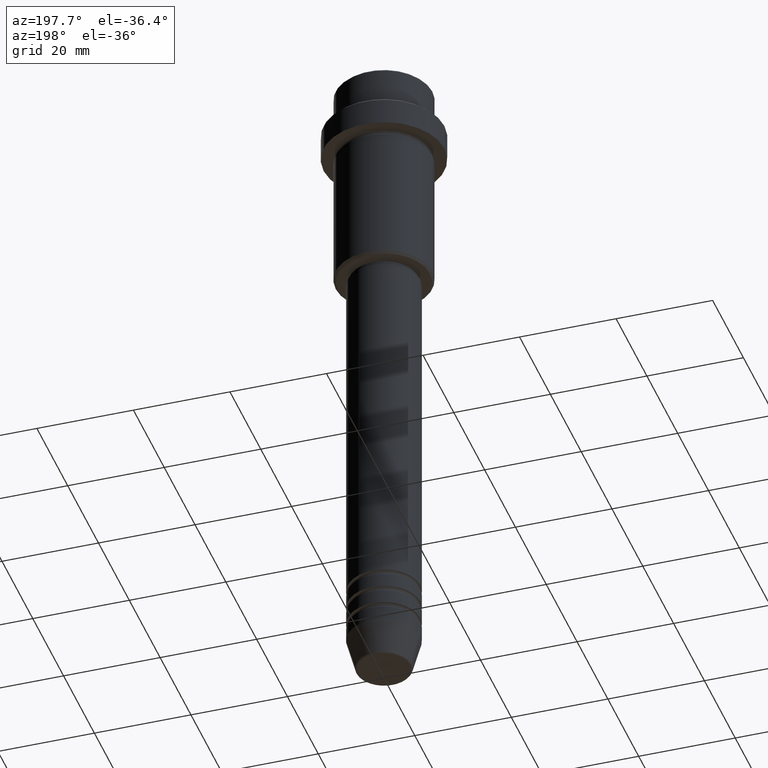
[diagram: clean part render]
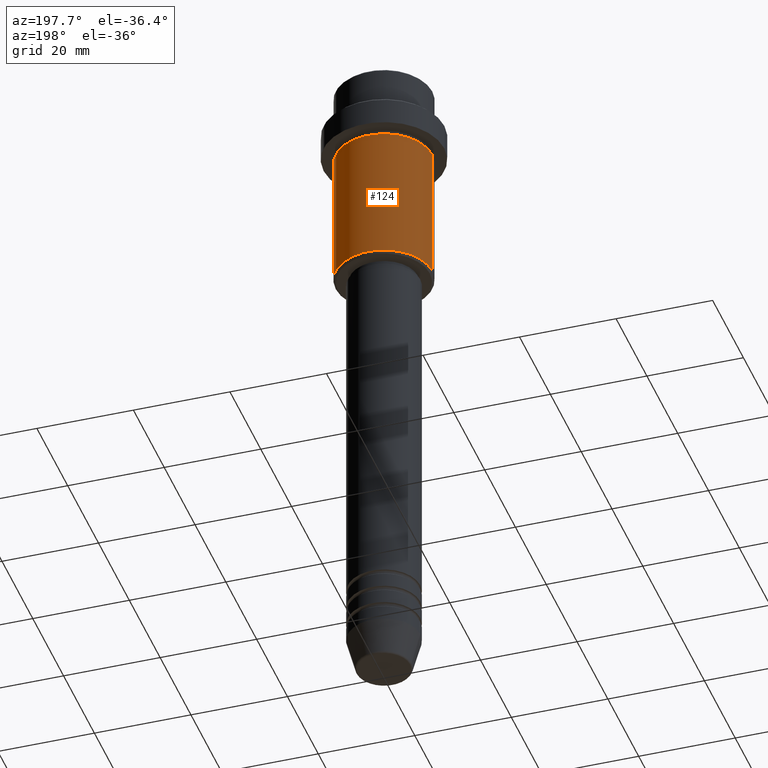
[diagram: same view with one face highlighted and labeled with its STEP entity id]
A machine part, auxiliary view. The second image highlights one B-rep face of the part: STEP entity #124.
In plain terms, the highlighted cylindrical surface (partial cylindrical patch) has radius 10 mm, axis along (-0, -0, 1).
Its self-contained STEP definition (entity closure, byte-faithful):
#27 = CARTESIAN_POINT ( 'NONE',  ( 9.999999999999998224, 0.000000000000000000, -16.00000000000000000 ) ) ;
#58 = ORIENTED_EDGE ( 'NONE', *, *, #236, .F. ) ;
#68 = ORIENTED_EDGE ( 'NONE', *, *, #672, .T. ) ;
#87 = AXIS2_PLACEMENT_3D ( 'NONE', #1156, #832, #491 ) ;
#124 = ADVANCED_FACE ( 'NONE', ( #167 ), #607, .T. ) ;
#125 = CARTESIAN_POINT ( 'NONE',  ( -9.999999999999998224, 1.224646799147353059E-15, 0.000000000000000000 ) ) ;
#167 = FACE_OUTER_BOUND ( 'NONE', #621, .T. ) ;
#200 = VECTOR ( 'NONE', #1401, 1000.000000000000000 ) ;
#222 = VERTEX_POINT ( 'NONE', #1061 ) ;
#236 = EDGE_CURVE ( 'NONE', #990, #444, #998, .T. ) ;
#262 = EDGE_CURVE ( 'NONE', #677, #222, #1363, .T. ) ;
#363 = DIRECTION ( 'NONE',  ( -0.000000000000000000, -0.000000000000000000, 1.000000000000000000 ) ) ;
#444 = VERTEX_POINT ( 'NONE', #1184 ) ;
#486 = EDGE_CURVE ( 'NONE', #677, #990, #1170, .T. ) ;
#491 = DIRECTION ( 'NONE',  ( 1.000000000000000000, 0.000000000000000000, 0.000000000000000000 ) ) ;
#528 = CARTESIAN_POINT ( 'NONE',  ( 9.999999999999998224, 0.000000000000000000, 0.000000000000000000 ) ) ;
#566 = DIRECTION ( 'NONE',  ( -0.000000000000000000, -0.000000000000000000, 1.000000000000000000 ) ) ;
#607 = CYLINDRICAL_SURFACE ( 'NONE', #87, 9.999999999999998224 ) ;
#621 = EDGE_LOOP ( 'NONE', ( #1306, #68, #58, #1005 ) ) ;
#672 = EDGE_CURVE ( 'NONE', #222, #444, #1007, .T. ) ;
#677 = VERTEX_POINT ( 'NONE', #682 ) ;
#681 = AXIS2_PLACEMENT_3D ( 'NONE', #1150, #1144, #1266 ) ;
#682 = CARTESIAN_POINT ( 'NONE',  ( 9.999999999999998224, 0.000000000000000000, -44.49999999999998579 ) ) ;
#832 = DIRECTION ( 'NONE',  ( -0.000000000000000000, -0.000000000000000000, 1.000000000000000000 ) ) ;
#923 = CARTESIAN_POINT ( 'NONE',  ( 0.000000000000000000, 0.000000000000000000, -16.00000000000000000 ) ) ;
#960 = VECTOR ( 'NONE', #566, 1000.000000000000000 ) ;
#990 = VERTEX_POINT ( 'NONE', #27 ) ;
#998 = CIRCLE ( 'NONE', #1389, 9.999999999999998224 ) ;
#1005 = ORIENTED_EDGE ( 'NONE', *, *, #486, .F. ) ;
#1007 = LINE ( 'NONE', #125, #960 ) ;
#1061 = CARTESIAN_POINT ( 'NONE',  ( -9.999999999999998224, 1.224646799147353059E-15, -44.49999999999998579 ) ) ;
#1144 = DIRECTION ( 'NONE',  ( -0.000000000000000000, -0.000000000000000000, 1.000000000000000000 ) ) ;
#1150 = CARTESIAN_POINT ( 'NONE',  ( 0.000000000000000000, 0.000000000000000000, -44.49999999999998579 ) ) ;
#1156 = CARTESIAN_POINT ( 'NONE',  ( 0.000000000000000000, 0.000000000000000000, 0.000000000000000000 ) ) ;
#1163 = DIRECTION ( 'NONE',  ( 1.000000000000000000, 0.000000000000000000, 0.000000000000000000 ) ) ;
#1170 = LINE ( 'NONE', #528, #200 ) ;
#1184 = CARTESIAN_POINT ( 'NONE',  ( -9.999999999999998224, 1.224646799147353059E-15, -16.00000000000000000 ) ) ;
#1266 = DIRECTION ( 'NONE',  ( -1.000000000000000000, 0.000000000000000000, 0.000000000000000000 ) ) ;
#1306 = ORIENTED_EDGE ( 'NONE', *, *, #262, .T. ) ;
#1363 = CIRCLE ( 'NONE', #681, 9.999999999999998224 ) ;
#1389 = AXIS2_PLACEMENT_3D ( 'NONE', #923, #363, #1163 ) ;
#1401 = DIRECTION ( 'NONE',  ( -0.000000000000000000, -0.000000000000000000, 1.000000000000000000 ) ) ;